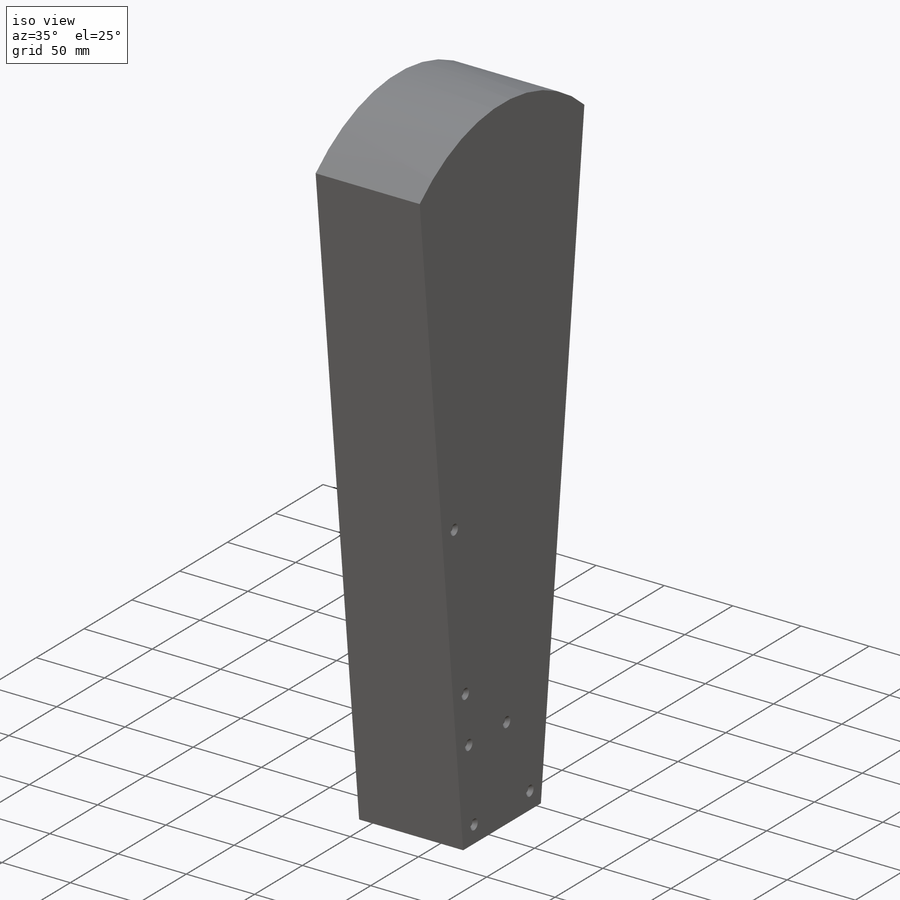
[diagram: iso view]
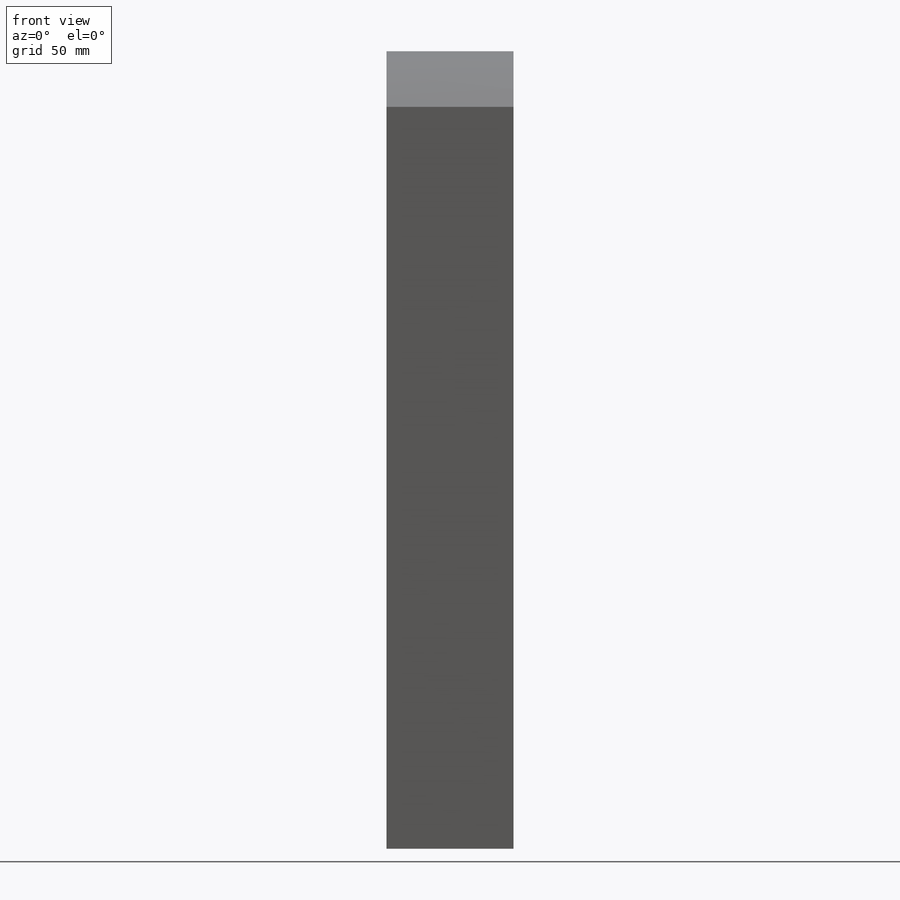
[diagram: front view]
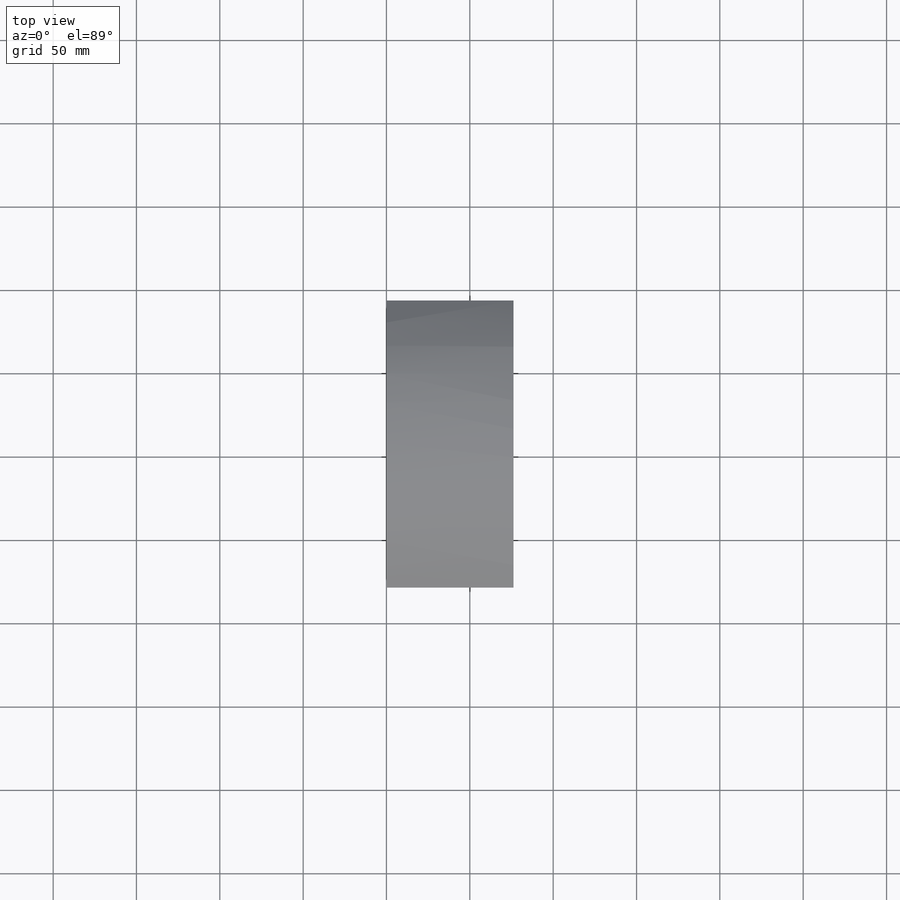
[diagram: top view]
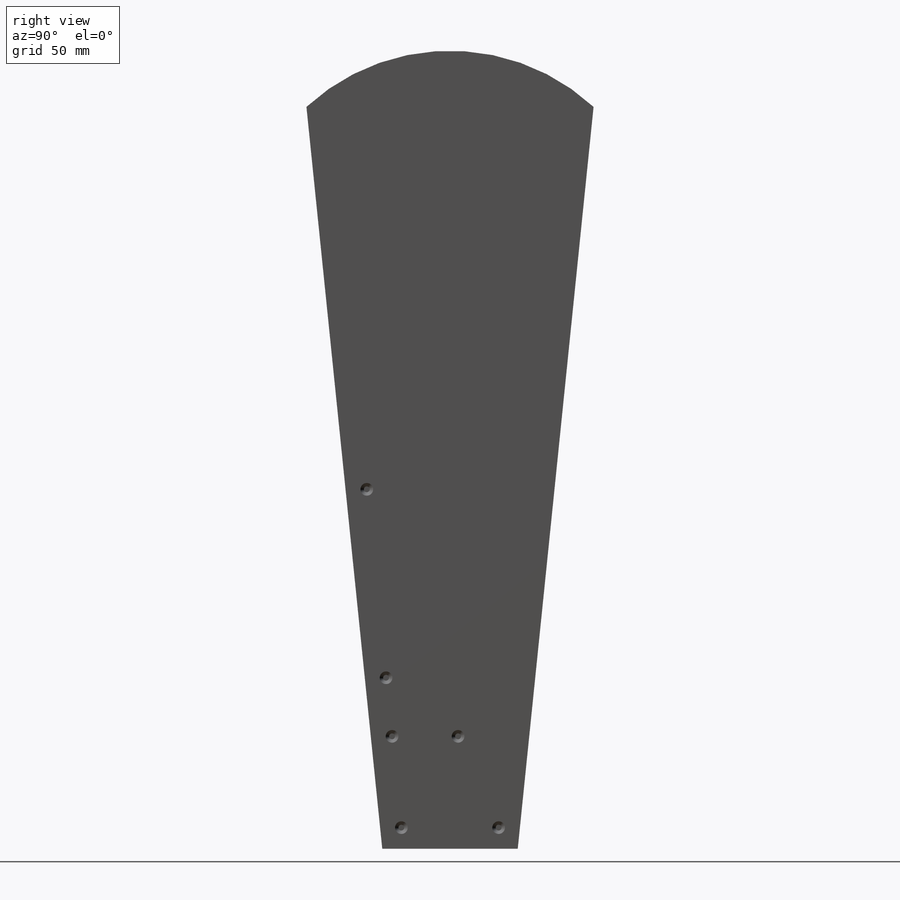
[diagram: right view]
SOLIDWORKS PART (.sldprt)
format: sldprt  version: not decoded by parser v0  size: 200,704 bytes
history: native  units: mm
features: sketch x5, plane x3, extrude x2, cut_extrude x2, material x1 (+8 scaffold rows collapsed)
feature tree (21):
  scaffold x8  (default folders/planes/origin — collapsed)
  material  "Material <sin especificar>"
  plane  "Alzado"
  plane  "Planta"
  plane  "Vista lateral"
  sketch  "Croquis1"  dims[D1=254.0mm D2=152.4mm D4=81.28mm D3=351.79mm]
  extrude  "Saliente-Extruir1"  Depth=76.2mm
  sketch  "Croquis2"
  sketch  "Croquis3"  dims[D1=50.8mm]
  extrude  "Línea de partición2"  [1 undecoded]
  sketch  "Croquis4"  dims[D1=12.7mm]
  cut_extrude  "Cortar-Extruir1"  Depth=2.54mm
  sketch  "Croquis5"  dims[D1=12.7mm]
  cut_extrude  "Cortar-Extruir2"  Depth=2.54mm
decode coverage: 7 of 9 modeling features carry decoded parameters
note: 1 parameter value undecoded
note: suppression state not decoded; provenance and decode notes live in map.json
